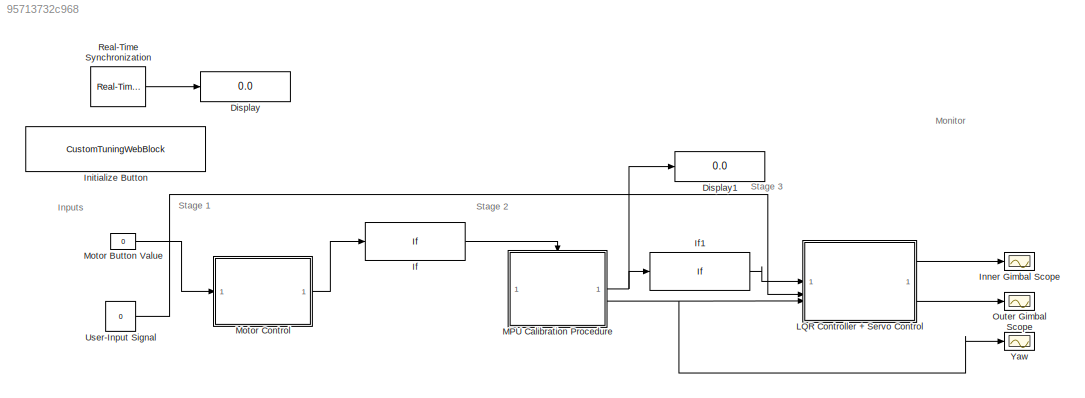
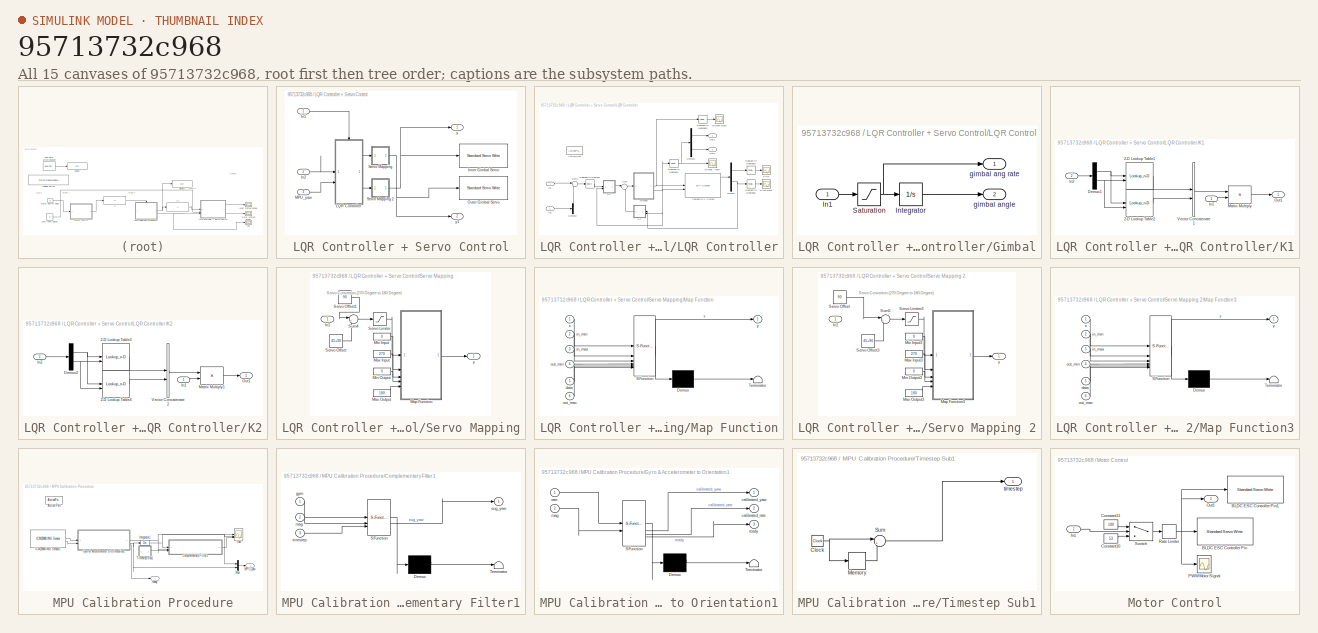
[diagram: thumbnail index - all 15 canvases of the model, root first then tree order]
MODEL slx_95713732c968
KIND model
CONFIG AbsTol = auto
CONFIG EnableMultiTasking = on
CONFIG FixedStep = auto
CONFIG MaxStep = auto
CONFIG MinStep = auto
CONFIG RelTol = 1e-3
CONFIG SampleTimeConstraint = Unconstrained
CONFIG SolverName = FixedStepAuto
CONFIG StartTime = 0.0
CONFIG StopTime = inf
BLOCK [Display] Display
  Decimation = 1
BLOCK [Display] Display1
  Decimation = 1
BLOCK [If] If
  IfExpression = u1 >= 180
BLOCK [If] If1
  IfExpression = u1 >= 1
BLOCK [CustomTuningWebBlock] Initialize Button
  Configuration = {"components":[{"name":"BackgroundImageComponent","settings":{"image":{"size":[0,0],"src":"default","srcOrientation":"horizontal"},"position":[0,0,1,1],"scaleMode":"0"}},{"name":"ButtonStateComponent","settings":{"buttonType":"latch","clickFcn":"","image":{"size":[180,45],"srcOrientation":"Right"},"latched":false,"offValue":null,"onValue":"1","position":[0,0,1,1],"pressDelay":"500","pressFcn":"","...<+16231ch>
  LabelPosition = Hide
  ShowInitialText = on
BLOCK [Scope] Inner Gimbal Scope
  Floating = off
  NumInputPorts = 1
  ScopeSpecificationString = Simulink.scopes.TimeScopeBlockCfg('CurrentConfiguration', extmgr.ConfigurationSet(extmgr.Configuration('Core','General UI',true),extmgr.Configuration('Core','Source UI',true),extmgr.Configuration('Sources','WiredSimulink',true,'DataLoggingVariableName','InnerGimbal','DataLogging',true,'DataLoggingSaveFormat','StructureWithTime'),extmgr.Configuration('Visuals','Time Domain',true,'SerializedDisplays...<+1630ch>
BLOCK [SubSystem] LQR Controller + Servo Control
BLOCK [Inport] LQR Controller + Servo Control/In1
BLOCK [Inport] LQR Controller + Servo Control/In2
  Port = 2
BLOCK [Reference] LQR Controller + Servo Control/Inner Gimbal Servo  REF=arduinolib/Standard Servo Write
  SourceBlock = arduinolib/Standard Servo Write
  SourceType = Arduino Standard Servo Write
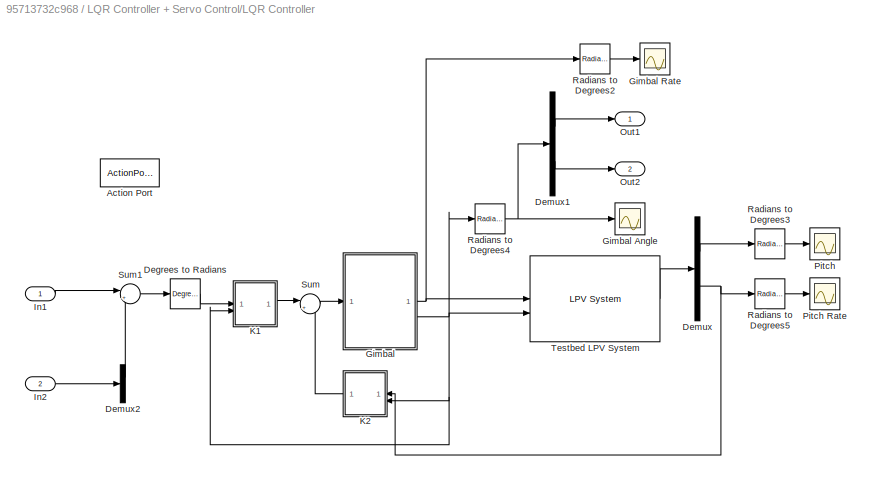
BLOCK [SubSystem] LQR Controller + Servo Control/LQR Controller
  TreatAsAtomicUnit = on
BLOCK [ActionPort] LQR Controller + Servo Control/LQR Controller/Action Port
  ActionPortLabel = if(u1 >= 1)
BLOCK [Reference] LQR Controller + Servo Control/LQR Controller/Degrees to Radians  REF=simulink_extras/Transformations/Degrees to
Radians
  SourceBlock = simulink_extras/Transformations/Degrees to\nRadians
  SourceType = DegreesToRadians
BLOCK [Demux] LQR Controller + Servo Control/LQR Controller/Demux
  Outputs = 2
BLOCK [Demux] LQR Controller + Servo Control/LQR Controller/Demux1
  NameLocation = left
  Outputs = 2
BLOCK [Demux] LQR Controller + Servo Control/LQR Controller/Demux2
  Outputs = 2
BLOCK [SubSystem] LQR Controller + Servo Control/LQR Controller/Gimbal
BLOCK [Scope] LQR Controller + Servo Control/LQR Controller/Gimbal Angle
  Floating = off
  NumInputPorts = 1
  ScopeSpecificationString = Simulink.scopes.TimeScopeBlockCfg('CurrentConfiguration', extmgr.ConfigurationSet(extmgr.Configuration('Core','General UI',true),extmgr.Configuration('Core','Source UI',true),extmgr.Configuration('Sources','WiredSimulink',true,'DataLoggingVariableName','ScopeData3','DataLogging',true,'DataLoggingSaveFormat','StructureWithTime'),extmgr.Configuration('Visuals','Time Domain',true,'SerializedDisplays'...<+1641ch>
BLOCK [Scope] LQR Controller + Servo Control/LQR Controller/Gimbal Rate
  Floating = off
  NumInputPorts = 1
  ScopeSpecificationString = Simulink.scopes.TimeScopeBlockCfg('CurrentConfiguration', extmgr.ConfigurationSet(extmgr.Configuration('Core','General UI',true),extmgr.Configuration('Core','Source UI',true),extmgr.Configuration('Sources','WiredSimulink',true,'DataLoggingVariableName','ScopeData5','DataLogging',true,'DataLoggingSaveFormat','StructureWithTime'),extmgr.Configuration('Visuals','Time Domain',true,'SerializedDisplays'...<+1634ch>
BLOCK [Inport] LQR Controller + Servo Control/LQR Controller/Gimbal/In1
BLOCK [Integrator] LQR Controller + Servo Control/LQR Controller/Gimbal/Integrator
  InitialCondition = [gamma1_initial,gamma2_initial]
BLOCK [Saturate] LQR Controller + Servo Control/LQR Controller/Gimbal/Saturation
  LowerLimit = -9.519977738135207
  UpperLimit = 9.519977738135207
BLOCK [Outport] LQR Controller + Servo Control/LQR Controller/Gimbal/gimbal ang rate
BLOCK [Outport] LQR Controller + Servo Control/LQR Controller/Gimbal/gimbal angle
  Port = 2
BLOCK [Inport] LQR Controller + Servo Control/LQR Controller/In1
BLOCK [Inport] LQR Controller + Servo Control/LQR Controller/In2
  Port = 2
BLOCK [SubSystem] LQR Controller + Servo Control/LQR Controller/K1
BLOCK [Lookup_n-D] LQR Controller + Servo Control/LQR Controller/K1/2-D Lookup Table1
  BreakpointsForDimension1 = p1
  BreakpointsForDimension2 = p2
  InputPortMap = u0,u1
  InternalRulePriority = Speed
  RndMeth = Simplest
  Table = K1
BLOCK [Lookup_n-D] LQR Controller + Servo Control/LQR Controller/K1/2-D Lookup Table2
  BreakpointsForDimension1 = p1
  BreakpointsForDimension2 = p2
  InputPortMap = u0,u1
  InternalRulePriority = Speed
  RndMeth = Simplest
  Table = K3
BLOCK [Demux] LQR Controller + Servo Control/LQR Controller/K1/Demux1
  Outputs = 2
BLOCK [Inport] LQR Controller + Servo Control/LQR Controller/K1/In1
BLOCK [Inport] LQR Controller + Servo Control/LQR Controller/K1/In2
  Port = 2
BLOCK [Product] LQR Controller + Servo Control/LQR Controller/K1/Matrix Multiply
  Multiplication = Matrix(*)
BLOCK [Outport] LQR Controller + Servo Control/LQR Controller/K1/Out1
BLOCK [Concatenate] LQR Controller + Servo Control/LQR Controller/K1/Vector Concatenate1
BLOCK [SubSystem] LQR Controller + Servo Control/LQR Controller/K2
BLOCK [Lookup_n-D] LQR Controller + Servo Control/LQR Controller/K2/2-D Lookup Table3
  BreakpointsForDimension1 = p1
  BreakpointsForDimension2 = p2
  InputPortMap = u0,u1
  InternalRulePriority = Speed
  RndMeth = Simplest
  Table = K2
BLOCK [Lookup_n-D] LQR Controller + Servo Control/LQR Controller/K2/2-D Lookup Table4
  BreakpointsForDimension1 = p1
  BreakpointsForDimension2 = p2
  InputPortMap = u0,u1
  InternalRulePriority = Speed
  RndMeth = Simplest
  Table = K4
BLOCK [Demux] LQR Controller + Servo Control/LQR Controller/K2/Demux2
  Outputs = 2
BLOCK [Inport] LQR Controller + Servo Control/LQR Controller/K2/In1
BLOCK [Inport] LQR Controller + Servo Control/LQR Controller/K2/In2
  NameLocation = top
  Port = 2
BLOCK [Product] LQR Controller + Servo Control/LQR Controller/K2/Matrix Multiply1
  Multiplication = Matrix(*)
BLOCK [Outport] LQR Controller + Servo Control/LQR Controller/K2/Out1
BLOCK [Concatenate] LQR Controller + Servo Control/LQR Controller/K2/Vector Concatenate2
BLOCK [Outport] LQR Controller + Servo Control/LQR Controller/Out1
BLOCK [Outport] LQR Controller + Servo Control/LQR Controller/Out2
  Port = 2
BLOCK [Scope] LQR Controller + Servo Control/LQR Controller/Pitch
  Floating = off
  NumInputPorts = 1
  ScopeSpecificationString = Simulink.scopes.TimeScopeBlockCfg('CurrentConfiguration', extmgr.ConfigurationSet(extmgr.Configuration('Core','General UI',true),extmgr.Configuration('Core','Source UI',true),extmgr.Configuration('Sources','WiredSimulink',true,'DataLoggingVariableName','ScopeData6','DataLogging',true,'DataLoggingSaveFormat','StructureWithTime'),extmgr.Configuration('Visuals','Time Domain',true,'SerializedDisplays'...<+1584ch>
BLOCK [Scope] LQR Controller + Servo Control/LQR Controller/Pitch Rate
  Floating = off
  NumInputPorts = 1
  ScopeSpecificationString = Simulink.scopes.TimeScopeBlockCfg('CurrentConfiguration', extmgr.ConfigurationSet(extmgr.Configuration('Core','General UI',true),extmgr.Configuration('Core','Source UI',true),extmgr.Configuration('Sources','WiredSimulink',true,'DataLoggingVariableName','ScopeData7','DataLogging',true,'DataLoggingSaveFormat','StructureWithTime'),extmgr.Configuration('Visuals','Time Domain',true,'SerializedDisplays'...<+1584ch>
BLOCK [Reference] LQR Controller + Servo Control/LQR Controller/Radians to Degrees2  REF=simulink_extras/Transformations/Radians
to Degrees
  SourceBlock = simulink_extras/Transformations/Radians\nto Degrees
  SourceType = RadiansToDegrees
BLOCK [Reference] LQR Controller + Servo Control/LQR Controller/Radians to Degrees3  REF=simulink_extras/Transformations/Radians
to Degrees
  SourceBlock = simulink_extras/Transformations/Radians\nto Degrees
  SourceType = RadiansToDegrees
BLOCK [Reference] LQR Controller + Servo Control/LQR Controller/Radians to Degrees4  REF=simulink_extras/Transformations/Radians
to Degrees
  SourceBlock = simulink_extras/Transformations/Radians\nto Degrees
  SourceType = RadiansToDegrees
BLOCK [Reference] LQR Controller + Servo Control/LQR Controller/Radians to Degrees5  REF=simulink_extras/Transformations/Radians
to Degrees
  SourceBlock = simulink_extras/Transformations/Radians\nto Degrees
  SourceType = RadiansToDegrees
BLOCK [Sum] LQR Controller + Servo Control/LQR Controller/Sum
  Inputs = |+-
BLOCK [Sum] LQR Controller + Servo Control/LQR Controller/Sum1
  Inputs = |+-
BLOCK [Reference] LQR Controller + Servo Control/LQR Controller/Testbed LPV System  REF=cstblocks/Linear Parameter Varying/LPV System
  SourceBlock = cstblocks/Linear Parameter Varying/LPV System
  SourceType = LPV Block
BLOCK [Inport] LQR Controller + Servo Control/MPU_yaw
  Port = 3
BLOCK [Reference] LQR Controller + Servo Control/Outer Gimbal Servo  REF=arduinolib/Standard Servo Write
  SourceBlock = arduinolib/Standard Servo Write
  SourceType = Arduino Standard Servo Write
BLOCK [SubSystem] LQR Controller + Servo Control/Servo Mapping
BLOCK [SubSystem] LQR Controller + Servo Control/Servo Mapping 2
BLOCK [Inport] LQR Controller + Servo Control/Servo Mapping 2/In1
BLOCK [SubSystem] LQR Controller + Servo Control/Servo Mapping 2/Map Function3
  ErrorFcn = Stateflow.Translate.translate
  PermitHierarchicalResolution = ExplicitOnly
  SFBlockType = MATLAB Function
  TreatAsAtomicUnit = on
BLOCK [Demux] LQR Controller + Servo Control/Servo Mapping 2/Map Function3/ Demux 
  Outputs = 1
BLOCK [S-Function] LQR Controller + Servo Control/Servo Mapping 2/Map Function3/ SFunction 
  EnableBusSupport = on
  FunctionName = sf_sfun
  PortCounts = [6 2]
  SFcnIsStateOwnerBlock = off
  SFunctionDeploymentMode = off
  Tag = Stateflow S-Function 5
BLOCK [Terminator] LQR Controller + Servo Control/Servo Mapping 2/Map Function3/ Terminator 
BLOCK [Inport] LQR Controller + Servo Control/Servo Mapping 2/Map Function3/data
  Port = 5
BLOCK [Inport] LQR Controller + Servo Control/Servo Mapping 2/Map Function3/in_max
  Port = 3
BLOCK [Inport] LQR Controller + Servo Control/Servo Mapping 2/Map Function3/in_min
  Port = 2
BLOCK [Inport] LQR Controller + Servo Control/Servo Mapping 2/Map Function3/out_max
  Port = 6
BLOCK [Inport] LQR Controller + Servo Control/Servo Mapping 2/Map Function3/out_min
  Port = 4
BLOCK [Inport] LQR Controller + Servo Control/Servo Mapping 2/Map Function3/x
BLOCK [Outport] LQR Controller + Servo Control/Servo Mapping 2/Map Function3/y
BLOCK [Constant] LQR Controller + Servo Control/Servo Mapping 2/Max Input3
  Value = 270
BLOCK [Constant] LQR Controller + Servo Control/Servo Mapping 2/Max Output3
  Value = 180
BLOCK [Constant] LQR Controller + Servo Control/Servo Mapping 2/Min Input3
  Value = 0
BLOCK [Constant] LQR Controller + Servo Control/Servo Mapping 2/Min Output3
  Value = 0
BLOCK [Saturate] LQR Controller + Servo Control/Servo Mapping 2/Servo Limiter3
  LowerLimit = 45
  UpperLimit = 225
BLOCK [Constant] LQR Controller + Servo Control/Servo Mapping 2/Servo Offset
  Value = 90
BLOCK [Constant] LQR Controller + Servo Control/Servo Mapping 2/Servo Offset3
  Value = 45+90
BLOCK [Sum] LQR Controller + Servo Control/Servo Mapping 2/Sum5
  Inputs = |++
BLOCK [Outport] LQR Controller + Servo Control/Servo Mapping 2/y
BLOCK [Inport] LQR Controller + Servo Control/Servo Mapping/In1
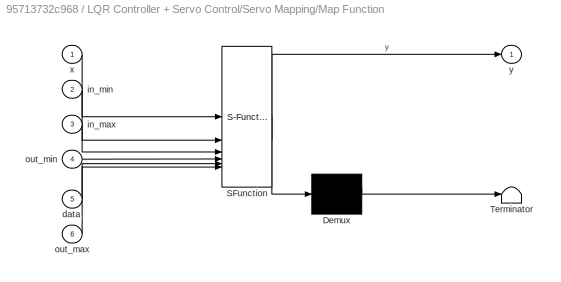
BLOCK [SubSystem] LQR Controller + Servo Control/Servo Mapping/Map Function
  ErrorFcn = Stateflow.Translate.translate
  PermitHierarchicalResolution = ExplicitOnly
  SFBlockType = MATLAB Function
  TreatAsAtomicUnit = on
BLOCK [Demux] LQR Controller + Servo Control/Servo Mapping/Map Function/ Demux 
  Outputs = 1
BLOCK [S-Function] LQR Controller + Servo Control/Servo Mapping/Map Function/ SFunction 
  EnableBusSupport = on
  FunctionName = sf_sfun
  PortCounts = [6 2]
  SFcnIsStateOwnerBlock = off
  SFunctionDeploymentMode = off
  Tag = Stateflow S-Function 4
BLOCK [Terminator] LQR Controller + Servo Control/Servo Mapping/Map Function/ Terminator 
BLOCK [Inport] LQR Controller + Servo Control/Servo Mapping/Map Function/data
  Port = 5
BLOCK [Inport] LQR Controller + Servo Control/Servo Mapping/Map Function/in_max
  Port = 3
BLOCK [Inport] LQR Controller + Servo Control/Servo Mapping/Map Function/in_min
  Port = 2
BLOCK [Inport] LQR Controller + Servo Control/Servo Mapping/Map Function/out_max
  Port = 6
BLOCK [Inport] LQR Controller + Servo Control/Servo Mapping/Map Function/out_min
  Port = 4
BLOCK [Inport] LQR Controller + Servo Control/Servo Mapping/Map Function/x
BLOCK [Outport] LQR Controller + Servo Control/Servo Mapping/Map Function/y
BLOCK [Constant] LQR Controller + Servo Control/Servo Mapping/Max Input
  Value = 270
BLOCK [Constant] LQR Controller + Servo Control/Servo Mapping/Max Output
  Value = 180
BLOCK [Constant] LQR Controller + Servo Control/Servo Mapping/Min Input
  Value = 0
BLOCK [Constant] LQR Controller + Servo Control/Servo Mapping/Min Output
  Value = 0
BLOCK [Saturate] LQR Controller + Servo Control/Servo Mapping/Servo Limiter
  LowerLimit = 45
  UpperLimit = 225
BLOCK [Constant] LQR Controller + Servo Control/Servo Mapping/Servo Offset
  Value = 45+90
BLOCK [Constant] LQR Controller + Servo Control/Servo Mapping/Servo Offset1
  Value = 90
BLOCK [Sum] LQR Controller + Servo Control/Servo Mapping/Sum4
  Inputs = |++
BLOCK [Outport] LQR Controller + Servo Control/Servo Mapping/y
BLOCK [Outport] LQR Controller + Servo Control/y
BLOCK [Outport] LQR Controller + Servo Control/y1
  Port = 2
BLOCK [SubSystem] MPU Calibration Procedure
  TreatAsAtomicUnit = on
BLOCK [ActionPort] MPU Calibration Procedure/Action Port
  ActionPortLabel = if(u1 >= 180)
BLOCK [SubSystem] MPU Calibration Procedure/Complementary Filter1
  ErrorFcn = Stateflow.Translate.translate
  PermitHierarchicalResolution = ExplicitOnly
  SFBlockType = MATLAB Function
  TreatAsAtomicUnit = on
BLOCK [Demux] MPU Calibration Procedure/Complementary Filter1/ Demux 
  Outputs = 1
BLOCK [S-Function] MPU Calibration Procedure/Complementary Filter1/ SFunction 
  EnableBusSupport = on
  FunctionName = sf_sfun
  PortCounts = [3 2]
  SFcnIsStateOwnerBlock = off
  SFunctionDeploymentMode = off
  Tag = Stateflow S-Function 3
BLOCK [Terminator] MPU Calibration Procedure/Complementary Filter1/ Terminator 
BLOCK [Outport] MPU Calibration Procedure/Complementary Filter1/eug_yaw
BLOCK [Inport] MPU Calibration Procedure/Complementary Filter1/gyro
BLOCK [Inport] MPU Calibration Procedure/Complementary Filter1/mag
  Port = 2
BLOCK [Inport] MPU Calibration Procedure/Complementary Filter1/timestep
  Port = 3
BLOCK [SubSystem] MPU Calibration Procedure/Gyro & Accelerometer to Orientation1
  ErrorFcn = Stateflow.Translate.translate
  PermitHierarchicalResolution = ExplicitOnly
  SFBlockType = MATLAB Function
  TreatAsAtomicUnit = on
BLOCK [Demux] MPU Calibration Procedure/Gyro & Accelerometer to Orientation1/ Demux 
  Outputs = 1
BLOCK [S-Function] MPU Calibration Procedure/Gyro & Accelerometer to Orientation1/ SFunction 
  EnableBusSupport = on
  FunctionName = sf_sfun
  PortCounts = [2 4]
  SFcnIsStateOwnerBlock = off
  SFunctionDeploymentMode = off
  Tag = Stateflow S-Function 6
BLOCK [Terminator] MPU Calibration Procedure/Gyro & Accelerometer to Orientation1/ Terminator 
BLOCK [Outport] MPU Calibration Procedure/Gyro & Accelerometer to Orientation1/calibrated_rate
  Port = 2
BLOCK [Outport] MPU Calibration Procedure/Gyro & Accelerometer to Orientation1/calibrated_yaw
BLOCK [Inport] MPU Calibration Procedure/Gyro & Accelerometer to Orientation1/mag
  Port = 2
BLOCK [Inport] MPU Calibration Procedure/Gyro & Accelerometer to Orientation1/rate
BLOCK [Outport] MPU Calibration Procedure/Gyro & Accelerometer to Orientation1/ready
  Port = 3
BLOCK [Reference] MPU Calibration Procedure/ICM20948 IMU Sensor1  REF=arduinosensorlib/ICM20948 IMU Sensor
  SourceBlock = arduinosensorlib/ICM20948 IMU Sensor
  SourceType = ICM20948 9DOF IMU Sensor
BLOCK [Integrator] MPU Calibration Procedure/Integrator1
BLOCK [Outport] MPU Calibration Procedure/MPU_yaw
  Port = 2
BLOCK [Mux] MPU Calibration Procedure/Mux
  DisplayOption = bar
  Inputs = 2
BLOCK [SubSystem] MPU Calibration Procedure/Timestep Sub1
BLOCK [Clock] MPU Calibration Procedure/Timestep Sub1/Clock
BLOCK [Memory] MPU Calibration Procedure/Timestep Sub1/Memory
BLOCK [Sum] MPU Calibration Procedure/Timestep Sub1/Sum
  Inputs = |+-
BLOCK [Outport] MPU Calibration Procedure/Timestep Sub1/timestep
BLOCK [Scope] MPU Calibration Procedure/Yaw
  Floating = off
  NumInputPorts = 3
  ScopeSpecificationString = Simulink.scopes.TimeScopeBlockCfg('CurrentConfiguration', extmgr.ConfigurationSet(extmgr.Configuration('Core','General UI',true),extmgr.Configuration('Core','Source UI',true),extmgr.Configuration('Sources','WiredSimulink',true,'DataLoggingVariableName','ScopeData1','DataLogging',true,'DataLoggingSaveFormat','StructureWithTime'),extmgr.Configuration('Visuals','Time Domain',true,'SerializedDisplays'...<+1721ch>
BLOCK [Outport] MPU Calibration Procedure/ready
BLOCK [Constant] Motor Button Value
  Value = 0
BLOCK [SubSystem] Motor Control
BLOCK [Reference] Motor Control/BLDC ESC Controller Pin  REF=arduinolib/Standard Servo Write
  SourceBlock = arduinolib/Standard Servo Write
  SourceType = Arduino Standard Servo Write
BLOCK [Reference] Motor Control/BLDC ESC Controller Pin1  REF=arduinolib/Standard Servo Write
  SourceBlock = arduinolib/Standard Servo Write
  SourceType = Arduino Standard Servo Write
BLOCK [Constant] Motor Control/Constant10
  Value = 53
BLOCK [Constant] Motor Control/Constant11
  Value = 180
BLOCK [Inport] Motor Control/In1
BLOCK [Outport] Motor Control/Out1
BLOCK [Scope] Motor Control/PWM Motor Signal
  Floating = off
  NumInputPorts = 1
  ScopeSpecificationString = Simulink.scopes.TimeScopeBlockCfg('CurrentConfiguration', extmgr.ConfigurationSet(extmgr.Configuration('Core','General UI',true),extmgr.Configuration('Core','Source UI',true),extmgr.Configuration('Sources','WiredSimulink',true,'DataLoggingVariableName','ScopeData9'),extmgr.Configuration('Visuals','Time Domain',true,'SerializedDisplays',{struct('MinYLimReal','38.6875','MaxYLimReal','181.8125','YLab...<+1558ch>
BLOCK [RateLimiter] Motor Control/Rate Limiter
  FallingSlewLimit = -25
  InitialCondition = 53
  RisingSlewLimit = 25
  SampleTimeMode = inherited
BLOCK [Switch] Motor Control/Switch
  Criteria = u2 > Threshold
  InputSameDT = off
  SaturateOnIntegerOverflow = off
BLOCK [Scope] Outer Gimbal Scope
  Floating = off
  NumInputPorts = 1
  ScopeSpecificationString = Simulink.scopes.TimeScopeBlockCfg('CurrentConfiguration', extmgr.ConfigurationSet(extmgr.Configuration('Core','General UI',true),extmgr.Configuration('Core','Source UI',true),extmgr.Configuration('Sources','WiredSimulink',true,'DataLoggingVariableName','OuterGimbal','DataLogging',true,'DataLoggingSaveFormat','StructureWithTime'),extmgr.Configuration('Visuals','Time Domain',true,'SerializedDisplays...<+1630ch>
BLOCK [Reference] Real-Time Synchronization  REF=sldrtlib/Real-Time
Synchronization
  SourceBlock = sldrtlib/Real-Time\nSynchronization
  SourceType = Simulink Desktop Real-Time Synchronization
BLOCK [Constant] User-Input Signal
  Value = 0
BLOCK [Scope] Yaw
  Floating = off
  NumInputPorts = 1
  ScopeSpecificationString = Simulink.scopes.TimeScopeBlockCfg('CurrentConfiguration', extmgr.ConfigurationSet(extmgr.Configuration('Core','General UI',true),extmgr.Configuration('Core','Source UI',true),extmgr.Configuration('Sources','WiredSimulink',true,'DataLoggingVariableName','Yaw','DataLogging',true,'DataLoggingSaveFormat','StructureWithTime'),extmgr.Configuration('Visuals','Time Domain',true,'SerializedDisplays',{struc...<+1628ch>
ANNOTATION (root): Inputs
ANNOTATION (root): Monitor
ANNOTATION (root): Stage 1
ANNOTATION (root): Stage 2
ANNOTATION (root): Stage 3
ANNOTATION LQR Controller + Servo Control/Servo Mapping: Servo Convertion (270 Degree to 180 Degree)
ANNOTATION LQR Controller + Servo Control/Servo Mapping 2: Servo Convertion (270 Degree to 180 Degree)
LINE If1:1 -> LQR Controller + Servo Control:1
LINE If:1 -> MPU Calibration Procedure:ifaction
LINE LQR Controller + Servo Control/In1:1 -> LQR Controller + Servo Control/LQR Controller:ifaction
LINE LQR Controller + Servo Control/In2:1 -> LQR Controller + Servo Control/LQR Controller:1
LINE LQR Controller + Servo Control/LQR Controller/Degrees to Radians:1 -> LQR Controller + Servo Control/LQR Controller/K1:1
LINE LQR Controller + Servo Control/LQR Controller/Demux1:1 -> LQR Controller + Servo Control/LQR Controller/Out1:1
LINE LQR Controller + Servo Control/LQR Controller/Demux1:2 -> LQR Controller + Servo Control/LQR Controller/Out2:1
LINE LQR Controller + Servo Control/LQR Controller/Demux2:1 -> LQR Controller + Servo Control/LQR Controller/Sum1:2
LINE LQR Controller + Servo Control/LQR Controller/Demux:1 -> LQR Controller + Servo Control/LQR Controller/Radians to Degrees3:1
NET LQR Controller + Servo Control/LQR Controller/Demux:2 -> LQR Controller + Servo Control/LQR Controller/K2:1, LQR Controller + Servo Control/LQR Controller/Radians to Degrees5:1
LINE LQR Controller + Servo Control/LQR Controller/Gimbal/In1:1 -> LQR Controller + Servo Control/LQR Controller/Gimbal/Saturation:1
LINE LQR Controller + Servo Control/LQR Controller/Gimbal/Integrator:1 -> LQR Controller + Servo Control/LQR Controller/Gimbal/gimbal angle:1
NET LQR Controller + Servo Control/LQR Controller/Gimbal/Saturation:1 -> LQR Controller + Servo Control/LQR Controller/Gimbal/Integrator:1, LQR Controller + Servo Control/LQR Controller/Gimbal/gimbal ang rate:1
NET LQR Controller + Servo Control/LQR Controller/Gimbal:1 -> LQR Controller + Servo Control/LQR Controller/Radians to Degrees2:1, LQR Controller + Servo Control/LQR Controller/Testbed LPV System:1
NET LQR Controller + Servo Control/LQR Controller/Gimbal:2 -> LQR Controller + Servo Control/LQR Controller/K1:2, LQR Controller + Servo Control/LQR Controller/K2:2, LQR Controller + Servo Control/LQR Controller/Radians to Degrees4:1, LQR Controller + Servo Control/LQR Controller/Testbed LPV System:2
LINE LQR Controller + Servo Control/LQR Controller/In1:1 -> LQR Controller + Servo Control/LQR Controller/Sum1:1
LINE LQR Controller + Servo Control/LQR Controller/In2:1 -> LQR Controller + Servo Control/LQR Controller/Demux2:1
LINE LQR Controller + Servo Control/LQR Controller/K1/2-D Lookup Table1:1 -> LQR Controller + Servo Control/LQR Controller/K1/Vector Concatenate1:1
LINE LQR Controller + Servo Control/LQR Controller/K1/2-D Lookup Table2:1 -> LQR Controller + Servo Control/LQR Controller/K1/Vector Concatenate1:2
NET LQR Controller + Servo Control/LQR Controller/K1/Demux1:1 -> LQR Controller + Servo Control/LQR Controller/K1/2-D Lookup Table1:1, LQR Controller + Servo Control/LQR Controller/K1/2-D Lookup Table2:1
NET LQR Controller + Servo Control/LQR Controller/K1/Demux1:2 -> LQR Controller + Servo Control/LQR Controller/K1/2-D Lookup Table1:2, LQR Controller + Servo Control/LQR Controller/K1/2-D Lookup Table2:2
LINE LQR Controller + Servo Control/LQR Controller/K1/In1:1 -> LQR Controller + Servo Control/LQR Controller/K1/Matrix Multiply:2
LINE LQR Controller + Servo Control/LQR Controller/K1/In2:1 -> LQR Controller + Servo Control/LQR Controller/K1/Demux1:1
LINE LQR Controller + Servo Control/LQR Controller/K1/Matrix Multiply:1 -> LQR Controller + Servo Control/LQR Controller/K1/Out1:1
LINE LQR Controller + Servo Control/LQR Controller/K1/Vector Concatenate1:1 -> LQR Controller + Servo Control/LQR Controller/K1/Matrix Multiply:1
LINE LQR Controller + Servo Control/LQR Controller/K1:1 -> LQR Controller + Servo Control/LQR Controller/Sum:1
LINE LQR Controller + Servo Control/LQR Controller/K2/2-D Lookup Table3:1 -> LQR Controller + Servo Control/LQR Controller/K2/Vector Concatenate2:1
LINE LQR Controller + Servo Control/LQR Controller/K2/2-D Lookup Table4:1 -> LQR Controller + Servo Control/LQR Controller/K2/Vector Concatenate2:2
NET LQR Controller + Servo Control/LQR Controller/K2/Demux2:1 -> LQR Controller + Servo Control/LQR Controller/K2/2-D Lookup Table3:1, LQR Controller + Servo Control/LQR Controller/K2/2-D Lookup Table4:1
NET LQR Controller + Servo Control/LQR Controller/K2/Demux2:2 -> LQR Controller + Servo Control/LQR Controller/K2/2-D Lookup Table3:2, LQR Controller + Servo Control/LQR Controller/K2/2-D Lookup Table4:2
LINE LQR Controller + Servo Control/LQR Controller/K2/In1:1 -> LQR Controller + Servo Control/LQR Controller/K2/Matrix Multiply1:2
LINE LQR Controller + Servo Control/LQR Controller/K2/In2:1 -> LQR Controller + Servo Control/LQR Controller/K2/Demux2:1
LINE LQR Controller + Servo Control/LQR Controller/K2/Matrix Multiply1:1 -> LQR Controller + Servo Control/LQR Controller/K2/Out1:1
LINE LQR Controller + Servo Control/LQR Controller/K2/Vector Concatenate2:1 -> LQR Controller + Servo Control/LQR Controller/K2/Matrix Multiply1:1
LINE LQR Controller + Servo Control/LQR Controller/K2:1 -> LQR Controller + Servo Control/LQR Controller/Sum:2
LINE LQR Controller + Servo Control/LQR Controller/Radians to Degrees2:1 -> LQR Controller + Servo Control/LQR Controller/Gimbal Rate:1
LINE LQR Controller + Servo Control/LQR Controller/Radians to Degrees3:1 -> LQR Controller + Servo Control/LQR Controller/Pitch:1
NET LQR Controller + Servo Control/LQR Controller/Radians to Degrees4:1 -> LQR Controller + Servo Control/LQR Controller/Demux1:1, LQR Controller + Servo Control/LQR Controller/Gimbal Angle:1
LINE LQR Controller + Servo Control/LQR Controller/Radians to Degrees5:1 -> LQR Controller + Servo Control/LQR Controller/Pitch Rate:1
LINE LQR Controller + Servo Control/LQR Controller/Sum1:1 -> LQR Controller + Servo Control/LQR Controller/Degrees to Radians:1
LINE LQR Controller + Servo Control/LQR Controller/Sum:1 -> LQR Controller + Servo Control/LQR Controller/Gimbal:1
LINE LQR Controller + Servo Control/LQR Controller/Testbed LPV System:1 -> LQR Controller + Servo Control/LQR Controller/Demux:1
LINE LQR Controller + Servo Control/LQR Controller:1 -> LQR Controller + Servo Control/Servo Mapping:1
LINE LQR Controller + Servo Control/LQR Controller:2 -> LQR Controller + Servo Control/Servo Mapping 2:1
LINE LQR Controller + Servo Control/MPU_yaw:1 -> LQR Controller + Servo Control/LQR Controller:2
LINE LQR Controller + Servo Control/Servo Mapping 2/Map Function3:1 -> LQR Controller + Servo Control/Servo Mapping 2/y:1
LINE LQR Controller + Servo Control/Servo Mapping 2/Max Input3:1 -> LQR Controller + Servo Control/Servo Mapping 2/Map Function3:3
LINE LQR Controller + Servo Control/Servo Mapping 2/Max Output3:1 -> LQR Controller + Servo Control/Servo Mapping 2/Map Function3:6
LINE LQR Controller + Servo Control/Servo Mapping 2/Min Input3:1 -> LQR Controller + Servo Control/Servo Mapping 2/Map Function3:2
LINE LQR Controller + Servo Control/Servo Mapping 2/Min Output3:1 -> LQR Controller + Servo Control/Servo Mapping 2/Map Function3:4
LINE LQR Controller + Servo Control/Servo Mapping 2/Servo Limiter3:1 -> LQR Controller + Servo Control/Servo Mapping 2/Map Function3:1
LINE LQR Controller + Servo Control/Servo Mapping 2/Servo Offset3:1 -> LQR Controller + Servo Control/Servo Mapping 2/Sum5:2
LINE LQR Controller + Servo Control/Servo Mapping 2/Servo Offset:1 -> LQR Controller + Servo Control/Servo Mapping 2/Sum5:1
LINE LQR Controller + Servo Control/Servo Mapping 2/Sum5:1 -> LQR Controller + Servo Control/Servo Mapping 2/Servo Limiter3:1
NET LQR Controller + Servo Control/Servo Mapping 2:1 -> LQR Controller + Servo Control/Inner Gimbal Servo:1, LQR Controller + Servo Control/y:1
LINE LQR Controller + Servo Control/Servo Mapping/Map Function:1 -> LQR Controller + Servo Control/Servo Mapping/y:1
LINE LQR Controller + Servo Control/Servo Mapping/Max Input:1 -> LQR Controller + Servo Control/Servo Mapping/Map Function:3
LINE LQR Controller + Servo Control/Servo Mapping/Max Output:1 -> LQR Controller + Servo Control/Servo Mapping/Map Function:6
LINE LQR Controller + Servo Control/Servo Mapping/Min Input:1 -> LQR Controller + Servo Control/Servo Mapping/Map Function:2
LINE LQR Controller + Servo Control/Servo Mapping/Min Output:1 -> LQR Controller + Servo Control/Servo Mapping/Map Function:4
LINE LQR Controller + Servo Control/Servo Mapping/Servo Limiter:1 -> LQR Controller + Servo Control/Servo Mapping/Map Function:1
LINE LQR Controller + Servo Control/Servo Mapping/Servo Offset1:1 -> LQR Controller + Servo Control/Servo Mapping/Sum4:1
LINE LQR Controller + Servo Control/Servo Mapping/Servo Offset:1 -> LQR Controller + Servo Control/Servo Mapping/Sum4:2
LINE LQR Controller + Servo Control/Servo Mapping/Sum4:1 -> LQR Controller + Servo Control/Servo Mapping/Servo Limiter:1
NET LQR Controller + Servo Control/Servo Mapping:1 -> LQR Controller + Servo Control/Outer Gimbal Servo:1, LQR Controller + Servo Control/y1:1
LINE LQR Controller + Servo Control:1 -> Inner Gimbal Scope:1
LINE LQR Controller + Servo Control:2 -> Outer Gimbal Scope:1
LINE MPU Calibration Procedure/Complementary Filter1:1 -> MPU Calibration Procedure/Yaw:3
NET MPU Calibration Procedure/Gyro & Accelerometer to Orientation1:1 -> MPU Calibration Procedure/Complementary Filter1:2, MPU Calibration Procedure/Yaw:1
NET MPU Calibration Procedure/Gyro & Accelerometer to Orientation1:2 -> MPU Calibration Procedure/Integrator1:1, MPU Calibration Procedure/Mux:2
LINE MPU Calibration Procedure/Gyro & Accelerometer to Orientation1:3 -> MPU Calibration Procedure/ready:1
LINE MPU Calibration Procedure/ICM20948 IMU Sensor1:1 -> MPU Calibration Procedure/Gyro & Accelerometer to Orientation1:1
LINE MPU Calibration Procedure/ICM20948 IMU Sensor1:2 -> MPU Calibration Procedure/Gyro & Accelerometer to Orientation1:2
NET MPU Calibration Procedure/Integrator1:1 -> MPU Calibration Procedure/Complementary Filter1:1, MPU Calibration Procedure/Mux:1, MPU Calibration Procedure/Yaw:2
LINE MPU Calibration Procedure/Mux:1 -> MPU Calibration Procedure/MPU_yaw:1
NET MPU Calibration Procedure/Timestep Sub1/Clock:1 -> MPU Calibration Procedure/Timestep Sub1/Memory:1, MPU Calibration Procedure/Timestep Sub1/Sum:1
LINE MPU Calibration Procedure/Timestep Sub1/Memory:1 -> MPU Calibration Procedure/Timestep Sub1/Sum:2
LINE MPU Calibration Procedure/Timestep Sub1/Sum:1 -> MPU Calibration Procedure/Timestep Sub1/timestep:1
LINE MPU Calibration Procedure/Timestep Sub1:1 -> MPU Calibration Procedure/Complementary Filter1:3
NET MPU Calibration Procedure:1 -> Display1:1, If1:1
NET MPU Calibration Procedure:2 -> LQR Controller + Servo Control:3, Yaw:1
LINE Motor Button Value:1 -> Motor Control:1
LINE Motor Control/Constant10:1 -> Motor Control/Switch:3
LINE Motor Control/Constant11:1 -> Motor Control/Switch:1
LINE Motor Control/In1:1 -> Motor Control/Switch:2
NET Motor Control/Rate Limiter:1 -> Motor Control/BLDC ESC Controller Pin1:1, Motor Control/BLDC ESC Controller Pin:1, Motor Control/Out1:1, Motor Control/PWM Motor Signal:1
LINE Motor Control/Switch:1 -> Motor Control/Rate Limiter:1
LINE Motor Control:1 -> If:1
LINE Real-Time Synchronization:1 -> Display:1
LINE User-Input Signal:1 -> LQR Controller + Servo Control:2
note: NET lines group one-source signal fan-out (src -> all destinations, sorted); 1:1 wires keep LINE
CHART MPU Calibration Procedure/Complementary Filter1 states=1 transitions=1
  STATE_LABEL 'eML_blk_kernel()'
  STATE_LABEL 'SCRIPT:\nfunction eug_yaw = CompFilter(gyro,mag,timestep)\n\npersistent yaw;\n\nif isempty(yaw), yaw = [0]; end\n\n\nalpha = 0.70;\n\nyaw = alpha*(gyro(1,1)*timestep + yaw) + (1-alpha)*(mag(1,1));\n\neug_yaw = yaw;\n\n\n\n\n\n%function eug_angle = CompFilter(gyro,acc_angle,timestep)\n\n%persistent angle_1; persistent angle_2; persistent angle_3;\n\n%if isempty(angle_1), angle_1 = [0]; end\n%if isempty(angle_2), angle_2 ...<+307ch>'
CHART LQR Controller + Servo Control/Servo Mapping/Map Function states=1 transitions=1
  STATE_LABEL 'eML_blk_kernel()'
  STATE_LABEL 'SCRIPT:\nfunction y = map(x,in_min,in_max,out_min,data, out_max)\n    y = (x - in_min) * (out_max - out_min) / (in_max - in_min) + out_min;\nend'
CHART LQR Controller + Servo Control/Servo Mapping 2/Map Function3 states=1 transitions=1
  STATE_LABEL 'eML_blk_kernel()'
  STATE_LABEL 'SCRIPT:\nfunction y = map(x,in_min,in_max,out_min,data, out_max)\n    y = (x - in_min) * (out_max - out_min) / (in_max - in_min) + out_min;\nend'
CHART MPU Calibration Procedure/Gyro & Accelerometer to Orientation1 states=1 transitions=1
  STATE_LABEL 'eML_blk_kernel()'
  STATE_LABEL 'SCRIPT:\nfunction [calibrated_yaw,calibrated_rate,ready]= EularAngle(rate,mag)\n\n% ---------------- [Tunable User Variables] ---------------- %\n\nn = 30; % Max Cycles for Calibrating IMU/MPU data\n\n% ---------------- [Function Counter] ---------------- %\npersistent callCount loopcycle;\n\nif isempty(loopcycle), loopcycle = 0; end               % If caibration is done, then loop cycle = 1\n\n    if isempty...<+1076ch>'
CHART  states=0 transitions=0
CHART  states=0 transitions=0
CHART  states=0 transitions=0
CHART  states=0 transitions=0
